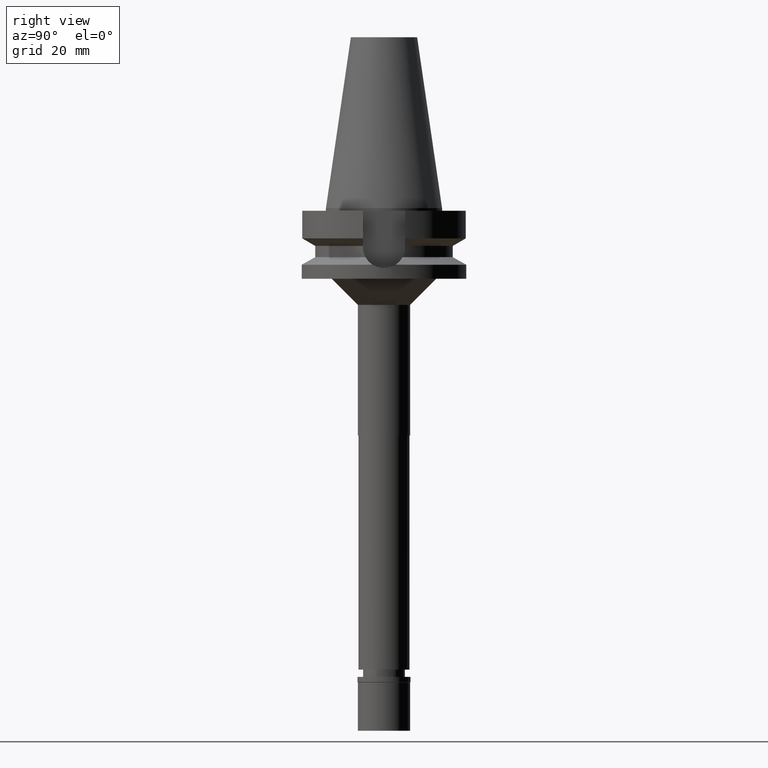
[diagram: clean part render]
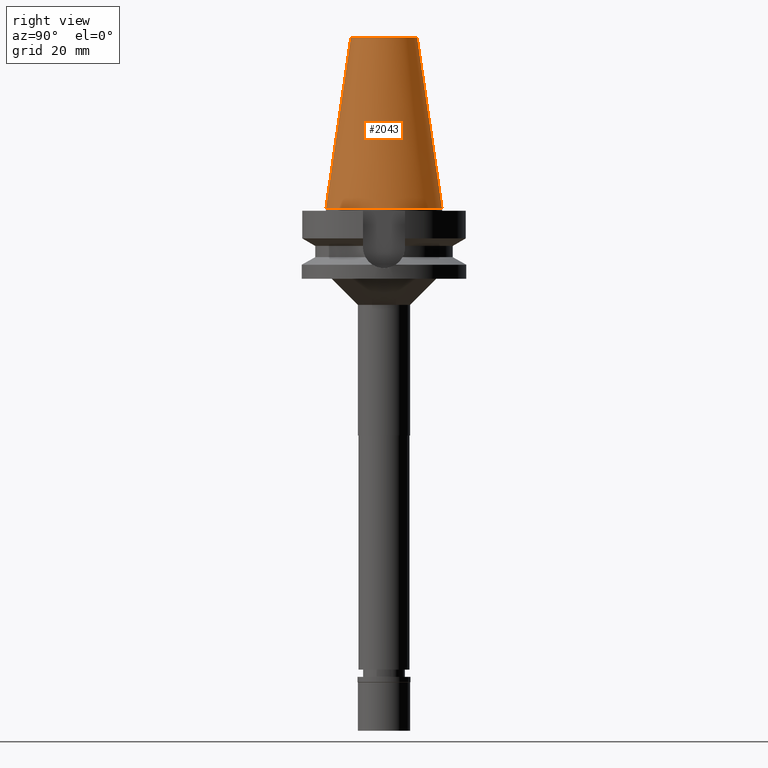
[diagram: same view with one face highlighted and labeled with its STEP entity id]
A machine part, right view. The second image highlights one B-rep face of the part: STEP entity #2043.
In plain terms, the highlighted conical surface has half-angle 8.297 deg.
Its self-contained STEP definition (entity closure, byte-faithful):
#156 = CARTESIAN_POINT ( 'NONE',  ( 0.0000000000000000000, 22.22500000000000142, 4.263256414560999963E-14 ) ) ;
#436 = DIRECTION ( 'NONE',  ( 0.0000000000000000000, -1.000000000000000000, 0.0000000000000000000 ) ) ;
#616 = CARTESIAN_POINT ( 'NONE',  ( 0.0000000000000000000, 12.68766899429999917, 65.40000000000000568 ) ) ;
#660 = EDGE_CURVE ( 'NONE', #1711, #2157, #1977, .T. ) ;
#664 = DIRECTION ( 'NONE',  ( 0.0000000000000000000, 1.000000000000000000, 0.0000000000000000000 ) ) ;
#685 = CARTESIAN_POINT ( 'NONE',  ( 0.0000000000000000000, 0.0000000000000000000, 32.70000000000000284 ) ) ;
#715 = EDGE_CURVE ( 'NONE', #2241, #1815, #1990, .T. ) ;
#768 = ORIENTED_EDGE ( 'NONE', *, *, #2005, .T. ) ;
#780 = CARTESIAN_POINT ( 'NONE',  ( 0.0000000000000000000, -22.22500000000000142, 4.263256414560999963E-14 ) ) ;
#829 = AXIS2_PLACEMENT_3D ( 'NONE', #685, #1662, #436 ) ;
#874 = EDGE_CURVE ( 'NONE', #2157, #1815, #881, .T. ) ;
#881 = CIRCLE ( 'NONE', #2674, 22.22500000000000142 ) ;
#1089 = VECTOR ( 'NONE', #1275, 1000.000000000000114 ) ;
#1119 = CARTESIAN_POINT ( 'NONE',  ( 0.0000000000000000000, 0.0000000000000000000, 65.40000000000000568 ) ) ;
#1259 = CARTESIAN_POINT ( 'NONE',  ( 0.0000000000000000000, -12.68766899429999917, 65.40000000000000568 ) ) ;
#1275 = DIRECTION ( 'NONE',  ( 0.0000000000000000000, -0.1443043893539925626, -0.9895333461855498891 ) ) ;
#1302 = DIRECTION ( 'NONE',  ( 0.0000000000000000000, 0.1443043893539925626, -0.9895333461855498891 ) ) ;
#1589 = DIRECTION ( 'NONE',  ( 0.0000000000000000000, 1.000000000000000000, 0.0000000000000000000 ) ) ;
#1647 = CARTESIAN_POINT ( 'NONE',  ( 0.0000000000000000000, -12.68766899429999917, 65.40000000000000568 ) ) ;
#1662 = DIRECTION ( 'NONE',  ( 0.0000000000000000000, 0.0000000000000000000, -1.000000000000000000 ) ) ;
#1711 = VERTEX_POINT ( 'NONE', #616 ) ;
#1805 = CONICAL_SURFACE ( 'NONE', #829, 17.45633449714999941, 0.1448099680379422438 ) ;
#1815 = VERTEX_POINT ( 'NONE', #780 ) ;
#1840 = ORIENTED_EDGE ( 'NONE', *, *, #874, .F. ) ;
#1858 = CIRCLE ( 'NONE', #2937, 12.68766899429999917 ) ;
#1873 = CARTESIAN_POINT ( 'NONE',  ( 0.0000000000000000000, 0.0000000000000000000, 0.0000000000000000000 ) ) ;
#1977 = LINE ( 'NONE', #2949, #2989 ) ;
#1990 = LINE ( 'NONE', #1259, #1089 ) ;
#2005 = EDGE_CURVE ( 'NONE', #1711, #2241, #1858, .T. ) ;
#2043 = ADVANCED_FACE ( 'NONE', ( #3085 ), #1805, .T. ) ;
#2157 = VERTEX_POINT ( 'NONE', #156 ) ;
#2231 = ORIENTED_EDGE ( 'NONE', *, *, #715, .T. ) ;
#2241 = VERTEX_POINT ( 'NONE', #1647 ) ;
#2252 = EDGE_LOOP ( 'NONE', ( #768, #2231, #1840, #3147 ) ) ;
#2618 = DIRECTION ( 'NONE',  ( 0.0000000000000000000, 0.0000000000000000000, -1.000000000000000000 ) ) ;
#2674 = AXIS2_PLACEMENT_3D ( 'NONE', #1873, #2856, #664 ) ;
#2856 = DIRECTION ( 'NONE',  ( 0.0000000000000000000, 0.0000000000000000000, -1.000000000000000000 ) ) ;
#2937 = AXIS2_PLACEMENT_3D ( 'NONE', #1119, #2618, #1589 ) ;
#2949 = CARTESIAN_POINT ( 'NONE',  ( 0.0000000000000000000, 12.68766899429999917, 65.40000000000000568 ) ) ;
#2989 = VECTOR ( 'NONE', #1302, 1000.000000000000114 ) ;
#3085 = FACE_OUTER_BOUND ( 'NONE', #2252, .T. ) ;
#3147 = ORIENTED_EDGE ( 'NONE', *, *, #660, .F. ) ;